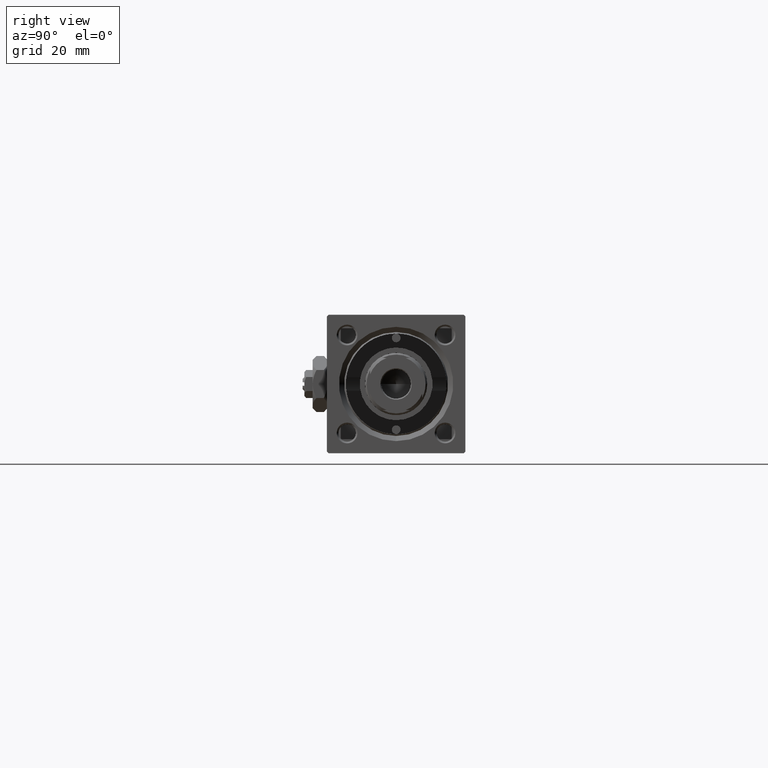
[diagram: clean part render]
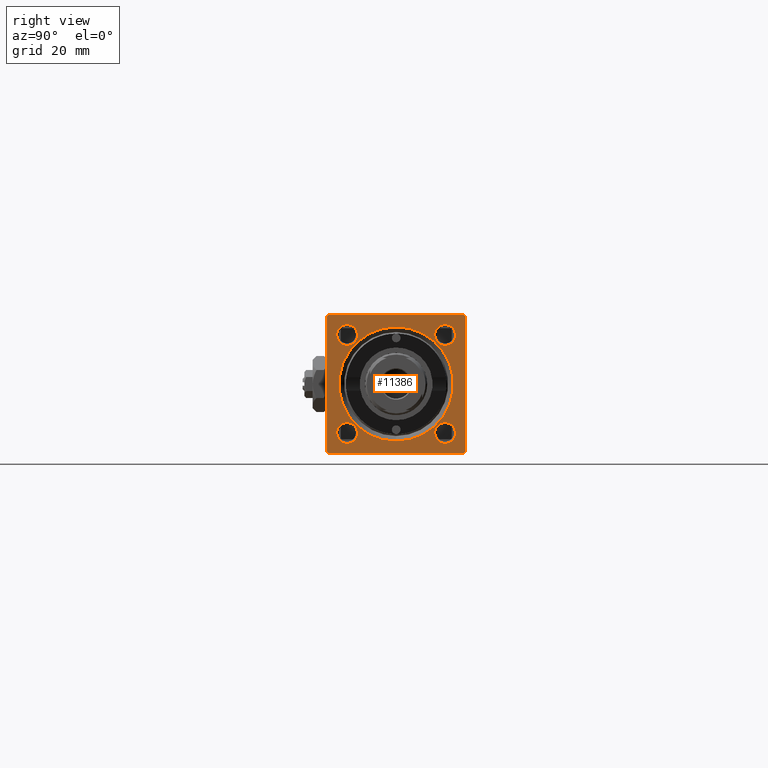
[diagram: same view with one face highlighted and labeled with its STEP entity id]
A machine part, right view. The second image highlights one B-rep face of the part: STEP entity #11386.
In plain terms, the highlighted planar face has unit normal (-1, 0, 0).
Its self-contained STEP definition (entity closure, byte-faithful):
#21 = LINE ( 'NONE', #19851, #10054 ) ;
#354 = DIRECTION ( 'NONE',  ( 0.000000000000000000, -0.7071067811865474617, 0.7071067811865474617 ) ) ;
#588 = DIRECTION ( 'NONE',  ( -1.000000000000000000, -0.000000000000000000, -0.000000000000000000 ) ) ;
#694 = ORIENTED_EDGE ( 'NONE', *, *, #31326, .T. ) ;
#1386 = VERTEX_POINT ( 'NONE', #21153 ) ;
#1575 = EDGE_CURVE ( 'NONE', #29481, #50991, #34550, .T. ) ;
#2475 = CIRCLE ( 'NONE', #52247, 3.000000000000000888 ) ;
#2482 = CARTESIAN_POINT ( 'NONE',  ( 179.0000000000000000, 19.99999999999999645, 20.00000000000000000 ) ) ;
#3790 = CIRCLE ( 'NONE', #7135, 3.000000000000004441 ) ;
#4641 = CARTESIAN_POINT ( 'NONE',  ( 179.0000000000000000, -14.14999999999999503, -14.15000000000000391 ) ) ;
#5294 = CARTESIAN_POINT ( 'NONE',  ( 179.0000000000000000, 0.000000000000000000, 0.000000000000000000 ) ) ;
#5817 = FACE_OUTER_BOUND ( 'NONE', #48317, .T. ) ;
#5950 = CARTESIAN_POINT ( 'NONE',  ( 179.0000000000000000, 14.14999999999999858, -17.15000000000000568 ) ) ;
#5962 = CARTESIAN_POINT ( 'NONE',  ( 179.0000000000000000, -20.00000000000000355, 19.50000000000002487 ) ) ;
#6182 = LINE ( 'NONE', #2482, #46829 ) ;
#6487 = ORIENTED_EDGE ( 'NONE', *, *, #38942, .T. ) ;
#6693 = AXIS2_PLACEMENT_3D ( 'NONE', #18769, #50981, #26948 ) ;
#7055 = DIRECTION ( 'NONE',  ( 0.000000000000000000, 0.000000000000000000, 1.000000000000000000 ) ) ;
#7135 = AXIS2_PLACEMENT_3D ( 'NONE', #22339, #14937, #42678 ) ;
#7856 = DIRECTION ( 'NONE',  ( -1.000000000000000000, -0.000000000000000000, -0.000000000000000000 ) ) ;
#7917 = DIRECTION ( 'NONE',  ( -0.000000000000000000, 0.7071067811865474617, 0.7071067811865474617 ) ) ;
#8695 = VERTEX_POINT ( 'NONE', #9487 ) ;
#9470 = EDGE_LOOP ( 'NONE', ( #694, #9723 ) ) ;
#9487 = CARTESIAN_POINT ( 'NONE',  ( 179.0000000000000000, -14.14999999999999680, 17.15000000000000568 ) ) ;
#9592 = EDGE_LOOP ( 'NONE', ( #31043, #18719 ) ) ;
#9615 = CARTESIAN_POINT ( 'NONE',  ( 179.0000000000000000, 19.50000000000002487, 20.00000000000000000 ) ) ;
#9723 = ORIENTED_EDGE ( 'NONE', *, *, #46197, .T. ) ;
#10054 = VECTOR ( 'NONE', #31215, 1000.000000000000000 ) ;
#10435 = CARTESIAN_POINT ( 'NONE',  ( 179.0000000000000000, -20.00000000000000355, 19.50000000000002487 ) ) ;
#10546 = CARTESIAN_POINT ( 'NONE',  ( 179.0000000000000000, 19.99999999999999645, 20.00000000000000000 ) ) ;
#11107 = ORIENTED_EDGE ( 'NONE', *, *, #36887, .T. ) ;
#11135 = VECTOR ( 'NONE', #44191, 1000.000000000000114 ) ;
#11386 = ADVANCED_FACE ( 'NONE', ( #13745, #22203, #49923, #45714, #30664, #5817 ), #26159, .F. ) ;
#11749 = EDGE_CURVE ( 'NONE', #19163, #51376, #33887, .T. ) ;
#11798 = DIRECTION ( 'NONE',  ( -1.000000000000000000, -0.000000000000000000, -0.000000000000000000 ) ) ;
#11972 = AXIS2_PLACEMENT_3D ( 'NONE', #19962, #15207, #32383 ) ;
#12051 = CARTESIAN_POINT ( 'NONE',  ( 179.0000000000000000, 14.14999999999999858, -11.14999999999999858 ) ) ;
#12076 = EDGE_LOOP ( 'NONE', ( #6487, #34851 ) ) ;
#12399 = AXIS2_PLACEMENT_3D ( 'NONE', #51370, #51107, #14926 ) ;
#12557 = CARTESIAN_POINT ( 'NONE',  ( 179.0000000000000000, 14.14999999999999858, -14.15000000000000036 ) ) ;
#12786 = ORIENTED_EDGE ( 'NONE', *, *, #23160, .T. ) ;
#13060 = LINE ( 'NONE', #49758, #33695 ) ;
#13308 = ORIENTED_EDGE ( 'NONE', *, *, #44369, .F. ) ;
#13745 = FACE_BOUND ( 'NONE', #9592, .T. ) ;
#14765 = VERTEX_POINT ( 'NONE', #50746 ) ;
#14926 = DIRECTION ( 'NONE',  ( 0.000000000000000000, 0.000000000000000000, 1.000000000000000000 ) ) ;
#14937 = DIRECTION ( 'NONE',  ( -1.000000000000000000, -0.000000000000000000, -0.000000000000000000 ) ) ;
#15207 = DIRECTION ( 'NONE',  ( -1.000000000000000000, -0.000000000000000000, -0.000000000000000000 ) ) ;
#15889 = CIRCLE ( 'NONE', #40373, 3.000000000000000888 ) ;
#15992 = CARTESIAN_POINT ( 'NONE',  ( 179.0000000000000000, -14.14999999999999680, 11.14999999999999680 ) ) ;
#16449 = ORIENTED_EDGE ( 'NONE', *, *, #43437, .T. ) ;
#16794 = CARTESIAN_POINT ( 'NONE',  ( 179.0000000000000000, -19.50000000000002487, -20.00000000000000000 ) ) ;
#17041 = DIRECTION ( 'NONE',  ( -1.000000000000000000, -0.000000000000000000, -0.000000000000000000 ) ) ;
#17479 = CARTESIAN_POINT ( 'NONE',  ( 179.0000000000000000, 14.14999999999999858, -14.15000000000000036 ) ) ;
#17609 = AXIS2_PLACEMENT_3D ( 'NONE', #17479, #588, #33613 ) ;
#17650 = VERTEX_POINT ( 'NONE', #15992 ) ;
#18073 = DIRECTION ( 'NONE',  ( 0.000000000000000000, 8.673617379884036705E-17, -1.000000000000000000 ) ) ;
#18236 = ORIENTED_EDGE ( 'NONE', *, *, #40440, .T. ) ;
#18719 = ORIENTED_EDGE ( 'NONE', *, *, #32238, .T. ) ;
#18769 = CARTESIAN_POINT ( 'NONE',  ( 179.0000000000000000, 14.14999999999999858, 14.15000000000000036 ) ) ;
#19011 = DIRECTION ( 'NONE',  ( 0.000000000000000000, -1.000000000000000000, -8.673617379884035472E-17 ) ) ;
#19163 = VERTEX_POINT ( 'NONE', #39153 ) ;
#19851 = CARTESIAN_POINT ( 'NONE',  ( 179.0000000000000000, 19.99999999999999645, -20.00000000000000000 ) ) ;
#19962 = CARTESIAN_POINT ( 'NONE',  ( 179.0000000000000000, 0.000000000000000000, 0.000000000000000000 ) ) ;
#20061 = VERTEX_POINT ( 'NONE', #12051 ) ;
#20441 = DIRECTION ( 'NONE',  ( -1.000000000000000000, -0.000000000000000000, -0.000000000000000000 ) ) ;
#20891 = CARTESIAN_POINT ( 'NONE',  ( 179.0000000000000000, -14.14999999999999503, -11.15000000000000213 ) ) ;
#21153 = CARTESIAN_POINT ( 'NONE',  ( 179.0000000000000000, 19.99999999999999645, -19.50000000000000000 ) ) ;
#21682 = EDGE_LOOP ( 'NONE', ( #11107, #36538 ) ) ;
#22050 = EDGE_LOOP ( 'NONE', ( #27628, #18236 ) ) ;
#22067 = VERTEX_POINT ( 'NONE', #44185 ) ;
#22203 = FACE_BOUND ( 'NONE', #9470, .T. ) ;
#22339 = CARTESIAN_POINT ( 'NONE',  ( 179.0000000000000000, 14.14999999999999858, 14.15000000000000036 ) ) ;
#23160 = EDGE_CURVE ( 'NONE', #41689, #48942, #32053, .T. ) ;
#24357 = ORIENTED_EDGE ( 'NONE', *, *, #52052, .T. ) ;
#24365 = VERTEX_POINT ( 'NONE', #9615 ) ;
#24961 = CARTESIAN_POINT ( 'NONE',  ( 179.0000000000000000, -14.14999999999999503, -17.15000000000000924 ) ) ;
#25414 = LINE ( 'NONE', #29135, #36832 ) ;
#25565 = EDGE_CURVE ( 'NONE', #24365, #14765, #46196, .T. ) ;
#25821 = AXIS2_PLACEMENT_3D ( 'NONE', #12557, #17041, #33178 ) ;
#25836 = VERTEX_POINT ( 'NONE', #43765 ) ;
#26159 = PLANE ( 'NONE',  #29610 ) ;
#26505 = AXIS2_PLACEMENT_3D ( 'NONE', #51112, #26810, #42928 ) ;
#26810 = DIRECTION ( 'NONE',  ( -1.000000000000000000, -0.000000000000000000, -0.000000000000000000 ) ) ;
#26948 = DIRECTION ( 'NONE',  ( 0.000000000000000000, 0.000000000000000000, 1.000000000000000000 ) ) ;
#27628 = ORIENTED_EDGE ( 'NONE', *, *, #47163, .T. ) ;
#27718 = CARTESIAN_POINT ( 'NONE',  ( 179.0000000000000000, 19.99999999999999645, -19.50000000000000000 ) ) ;
#28624 = DIRECTION ( 'NONE',  ( 0.000000000000000000, 0.000000000000000000, 1.000000000000000000 ) ) ;
#28838 = ORIENTED_EDGE ( 'NONE', *, *, #33845, .F. ) ;
#29062 = CARTESIAN_POINT ( 'NONE',  ( 179.0000000000000000, 14.14999999999999858, 11.14999999999999680 ) ) ;
#29135 = CARTESIAN_POINT ( 'NONE',  ( 179.0000000000000000, 19.50000000000002487, 20.00000000000000000 ) ) ;
#29481 = VERTEX_POINT ( 'NONE', #29062 ) ;
#29610 = AXIS2_PLACEMENT_3D ( 'NONE', #5294, #42548, #49664 ) ;
#30501 = DIRECTION ( 'NONE',  ( 0.000000000000000000, 0.000000000000000000, -1.000000000000000000 ) ) ;
#30664 = FACE_BOUND ( 'NONE', #12076, .T. ) ;
#30708 = CIRCLE ( 'NONE', #26505, 3.000000000000004441 ) ;
#30810 = CARTESIAN_POINT ( 'NONE',  ( 179.0000000000000000, 14.14999999999999858, 17.15000000000000568 ) ) ;
#31043 = ORIENTED_EDGE ( 'NONE', *, *, #1575, .T. ) ;
#31168 = LINE ( 'NONE', #27718, #33682 ) ;
#31215 = DIRECTION ( 'NONE',  ( 0.000000000000000000, -1.000000000000000000, 0.000000000000000000 ) ) ;
#31299 = VERTEX_POINT ( 'NONE', #10435 ) ;
#31326 = EDGE_CURVE ( 'NONE', #17650, #8695, #30708, .T. ) ;
#31546 = CARTESIAN_POINT ( 'NONE',  ( 179.0000000000000000, 0.000000000000000000, -16.49999999999998579 ) ) ;
#32053 = LINE ( 'NONE', #44695, #11135 ) ;
#32238 = EDGE_CURVE ( 'NONE', #50991, #29481, #3790, .T. ) ;
#32383 = DIRECTION ( 'NONE',  ( 0.000000000000000000, 0.000000000000000000, 1.000000000000000000 ) ) ;
#32793 = CIRCLE ( 'NONE', #17609, 3.000000000000000888 ) ;
#32814 = AXIS2_PLACEMENT_3D ( 'NONE', #38242, #20441, #28624 ) ;
#32962 = DIRECTION ( 'NONE',  ( -0.000000000000000000, -0.7071067811865279218, -0.7071067811865671127 ) ) ;
#33178 = DIRECTION ( 'NONE',  ( 0.000000000000000000, 0.000000000000000000, 1.000000000000000000 ) ) ;
#33613 = DIRECTION ( 'NONE',  ( 0.000000000000000000, 0.000000000000000000, 1.000000000000000000 ) ) ;
#33682 = VECTOR ( 'NONE', #7917, 1000.000000000000114 ) ;
#33695 = VECTOR ( 'NONE', #18073, 1000.000000000000000 ) ;
#33845 = EDGE_CURVE ( 'NONE', #25836, #1386, #6182, .T. ) ;
#33887 = CIRCLE ( 'NONE', #11972, 16.49999999999998579 ) ;
#34550 = CIRCLE ( 'NONE', #6693, 3.000000000000004441 ) ;
#34851 = ORIENTED_EDGE ( 'NONE', *, *, #11749, .T. ) ;
#35368 = CIRCLE ( 'NONE', #32814, 3.000000000000004441 ) ;
#35570 = ORIENTED_EDGE ( 'NONE', *, *, #37106, .T. ) ;
#36538 = ORIENTED_EDGE ( 'NONE', *, *, #51455, .T. ) ;
#36832 = VECTOR ( 'NONE', #354, 1000.000000000000114 ) ;
#36887 = EDGE_CURVE ( 'NONE', #42684, #20061, #45235, .T. ) ;
#37106 = EDGE_CURVE ( 'NONE', #25836, #24365, #25414, .T. ) ;
#38125 = VERTEX_POINT ( 'NONE', #20891 ) ;
#38242 = CARTESIAN_POINT ( 'NONE',  ( 179.0000000000000000, -14.14999999999999680, 14.15000000000000036 ) ) ;
#38937 = ORIENTED_EDGE ( 'NONE', *, *, #25565, .T. ) ;
#38942 = EDGE_CURVE ( 'NONE', #51376, #19163, #46135, .T. ) ;
#39153 = CARTESIAN_POINT ( 'NONE',  ( 179.0000000000000000, 2.020667218593131128E-15, 16.49999999999998579 ) ) ;
#39829 = CARTESIAN_POINT ( 'NONE',  ( 179.0000000000000000, -14.14999999999999503, -14.15000000000000391 ) ) ;
#40373 = AXIS2_PLACEMENT_3D ( 'NONE', #4641, #7856, #44549 ) ;
#40440 = EDGE_CURVE ( 'NONE', #38125, #51890, #15889, .T. ) ;
#41250 = VECTOR ( 'NONE', #32962, 1000.000000000000000 ) ;
#41689 = VERTEX_POINT ( 'NONE', #42738 ) ;
#41703 = ORIENTED_EDGE ( 'NONE', *, *, #46865, .T. ) ;
#42165 = LINE ( 'NONE', #5962, #41250 ) ;
#42470 = VECTOR ( 'NONE', #19011, 1000.000000000000000 ) ;
#42548 = DIRECTION ( 'NONE',  ( -1.000000000000000000, 0.000000000000000000, -0.000000000000000000 ) ) ;
#42678 = DIRECTION ( 'NONE',  ( 0.000000000000000000, 0.000000000000000000, 1.000000000000000000 ) ) ;
#42684 = VERTEX_POINT ( 'NONE', #5950 ) ;
#42738 = CARTESIAN_POINT ( 'NONE',  ( 179.0000000000000000, -20.00000000000000000, -19.50000000000002487 ) ) ;
#42928 = DIRECTION ( 'NONE',  ( 0.000000000000000000, 0.000000000000000000, 1.000000000000000000 ) ) ;
#43437 = EDGE_CURVE ( 'NONE', #14765, #31299, #42165, .T. ) ;
#43765 = CARTESIAN_POINT ( 'NONE',  ( 179.0000000000000000, 19.99999999999999645, 19.50000000000002842 ) ) ;
#44185 = CARTESIAN_POINT ( 'NONE',  ( 179.0000000000000000, 19.49999999999999645, -20.00000000000000000 ) ) ;
#44191 = DIRECTION ( 'NONE',  ( 0.000000000000000000, 0.7071067811865474617, -0.7071067811865474617 ) ) ;
#44369 = EDGE_CURVE ( 'NONE', #22067, #48942, #21, .T. ) ;
#44549 = DIRECTION ( 'NONE',  ( 0.000000000000000000, 0.000000000000000000, 1.000000000000000000 ) ) ;
#44695 = CARTESIAN_POINT ( 'NONE',  ( 179.0000000000000000, -19.50000000000002487, -20.00000000000000000 ) ) ;
#45235 = CIRCLE ( 'NONE', #25821, 3.000000000000000888 ) ;
#45714 = FACE_BOUND ( 'NONE', #21682, .T. ) ;
#46135 = CIRCLE ( 'NONE', #12399, 16.49999999999998579 ) ;
#46196 = LINE ( 'NONE', #10546, #42470 ) ;
#46197 = EDGE_CURVE ( 'NONE', #8695, #17650, #35368, .T. ) ;
#46829 = VECTOR ( 'NONE', #30501, 1000.000000000000000 ) ;
#46865 = EDGE_CURVE ( 'NONE', #22067, #1386, #31168, .T. ) ;
#47163 = EDGE_CURVE ( 'NONE', #51890, #38125, #2475, .T. ) ;
#48317 = EDGE_LOOP ( 'NONE', ( #24357, #12786, #13308, #41703, #28838, #35570, #38937, #16449 ) ) ;
#48942 = VERTEX_POINT ( 'NONE', #16794 ) ;
#49664 = DIRECTION ( 'NONE',  ( -0.000000000000000000, 0.000000000000000000, 1.000000000000000000 ) ) ;
#49758 = CARTESIAN_POINT ( 'NONE',  ( 179.0000000000000000, -20.00000000000000355, 19.99999999999999645 ) ) ;
#49923 = FACE_BOUND ( 'NONE', #22050, .T. ) ;
#50746 = CARTESIAN_POINT ( 'NONE',  ( 179.0000000000000000, -19.50000000000006040, 19.99999999999999645 ) ) ;
#50981 = DIRECTION ( 'NONE',  ( -1.000000000000000000, -0.000000000000000000, -0.000000000000000000 ) ) ;
#50991 = VERTEX_POINT ( 'NONE', #30810 ) ;
#51107 = DIRECTION ( 'NONE',  ( -1.000000000000000000, -0.000000000000000000, -0.000000000000000000 ) ) ;
#51112 = CARTESIAN_POINT ( 'NONE',  ( 179.0000000000000000, -14.14999999999999680, 14.15000000000000036 ) ) ;
#51370 = CARTESIAN_POINT ( 'NONE',  ( 179.0000000000000000, 0.000000000000000000, 0.000000000000000000 ) ) ;
#51376 = VERTEX_POINT ( 'NONE', #31546 ) ;
#51455 = EDGE_CURVE ( 'NONE', #20061, #42684, #32793, .T. ) ;
#51890 = VERTEX_POINT ( 'NONE', #24961 ) ;
#52052 = EDGE_CURVE ( 'NONE', #31299, #41689, #13060, .T. ) ;
#52247 = AXIS2_PLACEMENT_3D ( 'NONE', #39829, #11798, #7055 ) ;